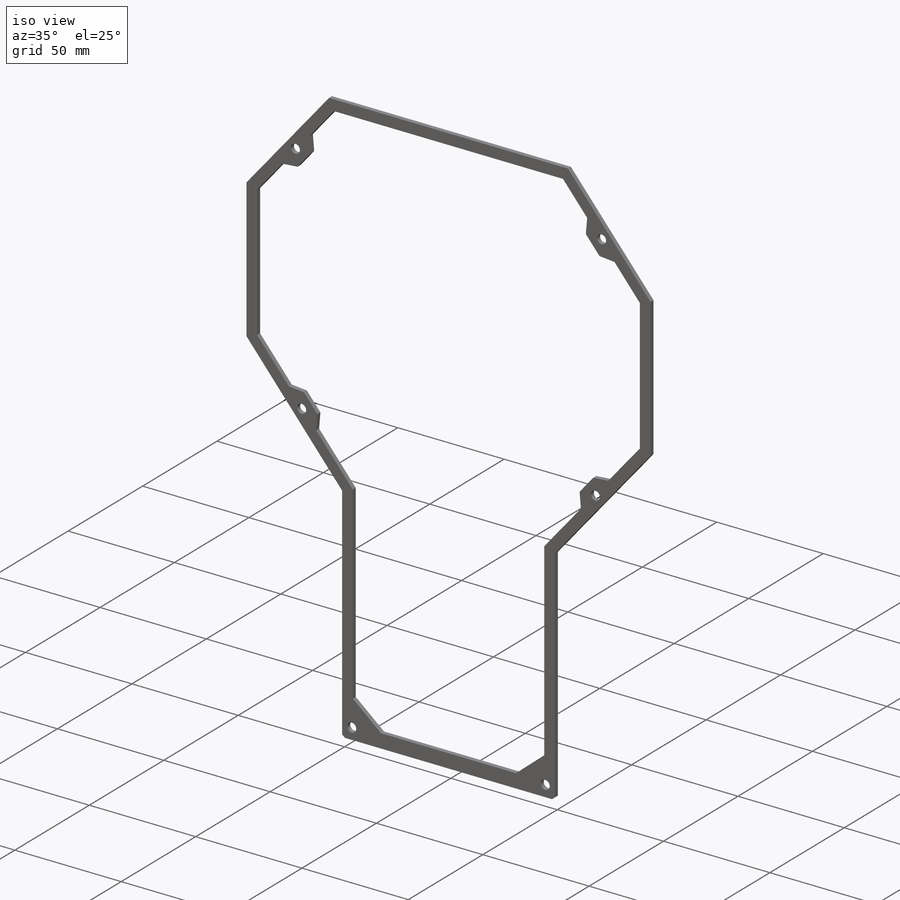
[diagram: iso view]
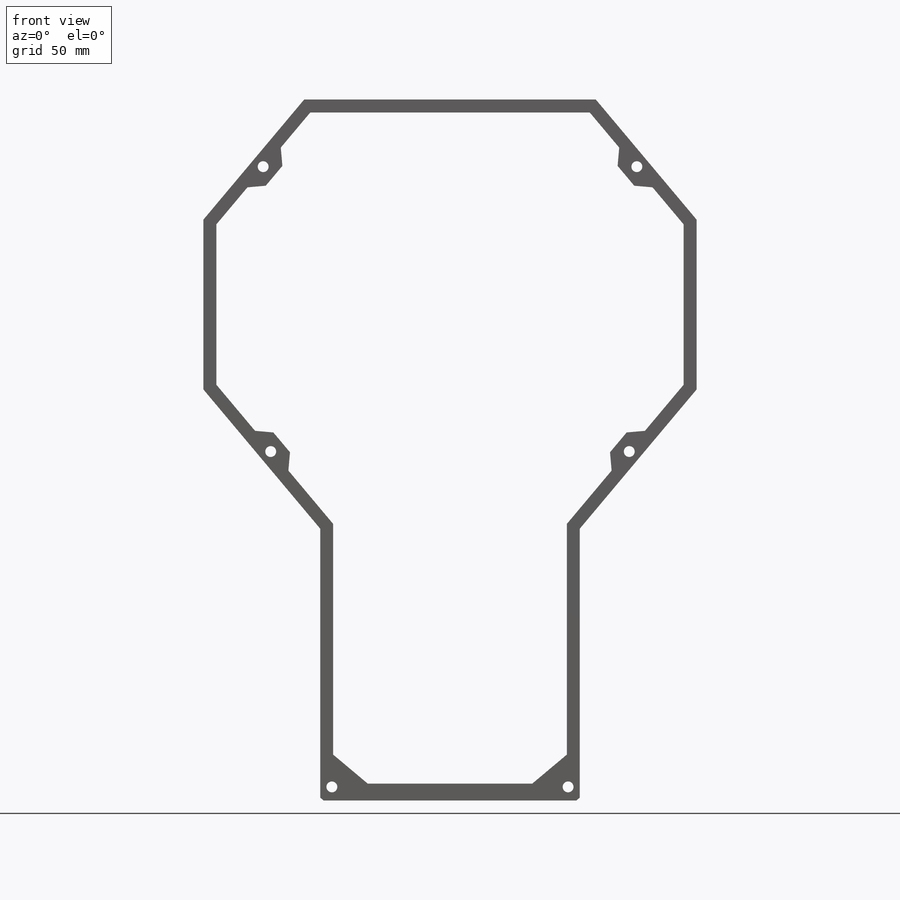
[diagram: front view]
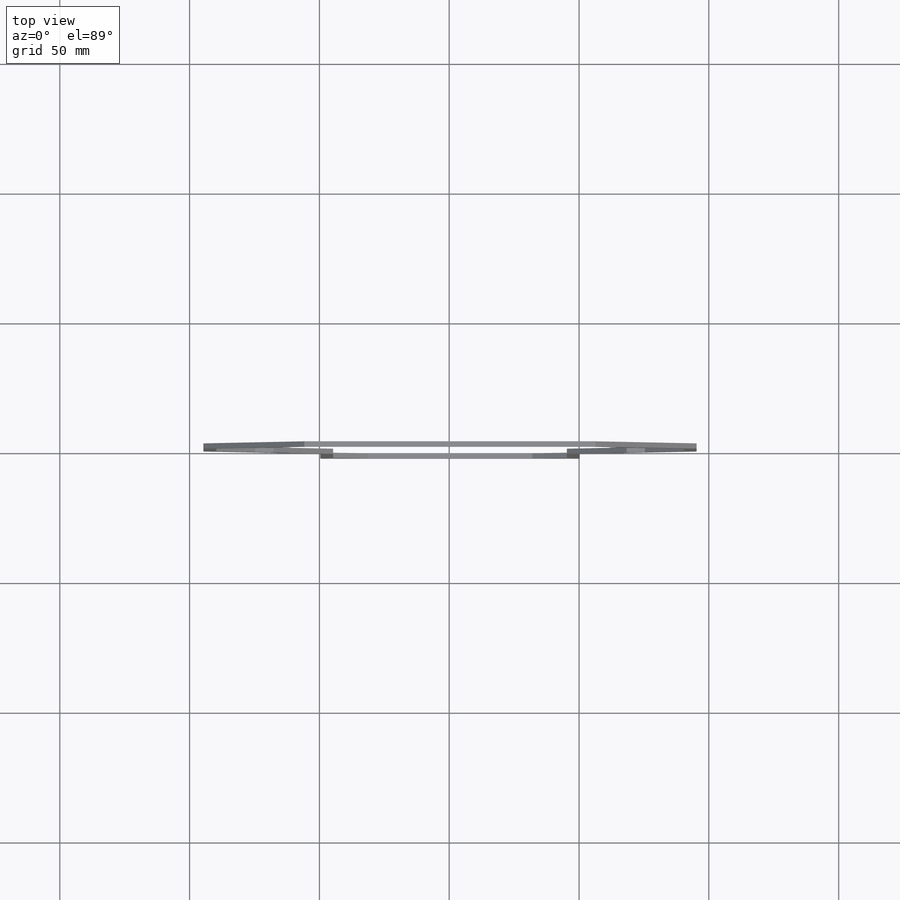
[diagram: top view]
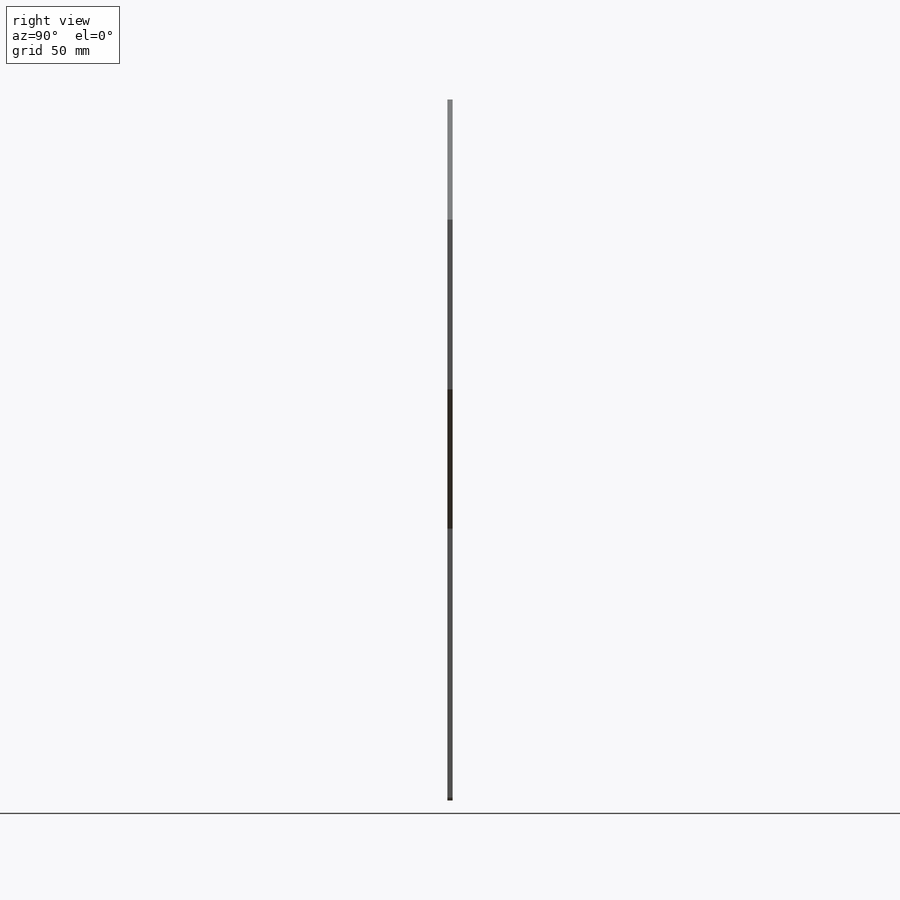
[diagram: right view]
SOLIDWORKS PART (.sldprt)
format: sldprt  version: not decoded by parser v0  size: 313,344 bytes
history: native  units: mm
features: plane x3, sketch x3, cut_extrude x2, material x1, extrude x1 (+9 scaffold rows collapsed)
feature tree (19):
  scaffold x9  (default folders/planes/origin — collapsed)
  material  "Material <não especificado>"
  plane  "Plano frontal"
  plane  "Plano superior"
  plane  "Plano direito"
  sketch  "Esboço1"  dims[D1=~17.191271mm]
  extrude  "Ressalto-extrusão1"  Depth=2mm
  sketch  "Esboço2"  dims[c1.D1=4.0mm c1.D2=4.0mm c1.D3=4.0mm c1.D5=4.0mm c1.D6=4.0mm c1.D7=4.0mm c1.D8=4.0mm c2.D1=4.0mm c2.D2=4.0mm c2.D3=4.0mm c2.D4=4.0mm c2.D5=2.0mm c3.D1=4.2mm c3.D3=4.2mm c4.D1=4.2mm c4.D2=~2.466577mm c4.D3=~1.233289mm c4.D4=4.2mm c4.D5=4.2mm c5.D2=4.2mm c5.D3=4.2mm c5.D4=4.2mm c5.D5=4.2mm c5.D1=4.2mm c5.D7=4.2mm c5.D8=4.2mm c6.D4=4.2mm c6.D5=4.2mm c6.D1=5.0mm c6.D2=5.0mm c6.D3=16.0mm c7.D4=29.0mm c7.D5=5.0mm c7.D6=5.0mm c7.D7=15.0mm c7.D8=30.0mm c7.D9=16.0mm c7.D1=5.0mm c7.D2=15.0mm c7.D3=5.0mm c8.D4=~26.355396mm c8.D2=~11.639228mm c8.D1=5.0mm c9.D2=~26.355396mm c9.D3=5.0mm c9.D4=~153.010572mm c9.D1=4.5mm c10.D2=5.0mm c10.D3=~26.364405mm c10.D4=5.0mm c11.D2=4.5mm c11.D3=4.5mm c11.D4=~2.552702mm c12.D4=50.0deg c13.D4=5.0mm c13.D5=5.0mm c13.D6=10.0mm c13.D1=~25.861012mm c13.D7=~23.027629mm c13.D8=5.23mm c14.D4=4.5mm c14.D5=28.0mm c14.D6=~0.246692mm]
  cut_extrude  "Corte-extrusão1"  [1 undecoded]
  sketch  "Esboço3"  dims[c1.D6=4.2mm c1.D12=4.2mm c1.D13=4.2mm c2.D6=4.2mm c2.D4=4.2mm c2.D9=~17.44582mm c2.D13=4.2mm c2.D14=4.2mm c2.D17=4.2mm c2.D20=4.2mm c2.D21=4.2mm c3.D9=4.2mm c3.D12=4.2mm c3.D1=10.0mm c3.D2=10.0mm c3.D3=10.0mm c3.D4=10.0mm c3.D5=10.0mm c3.D6=10.0mm c3.D7=10.0mm c3.D8=10.0mm c4.D9=10.0mm c4.D10=10.0mm c4.D1=5.0mm c4.D2=10.0mm c4.D3=5.0mm c4.D4=~10.243243mm c5.D4=50.0deg c5.D5=~7.778619mm c6.D5=40.0deg c7.D5=10.0mm c7.D6=10.0mm c7.D7=5.0mm c7.D8=5.0mm c7.D9=5.0mm c7.D10=10.0mm c7.D11=~6.527036mm c8.D11=50.0deg c8.D12=10.0mm c8.D13=10.0mm c8.D14=~4.274005mm c8.D15=~9.845734mm c8.D10=5.0mm c9.D11=~33.318035mm c10.D11=40.0deg c10.D3=5.0mm c10.D12=98.0531mm c10.D1=5.0mm c10.D2=~15.254265mm c11.D2=~0.313431deg c12.D2=5.0mm c12.D3=10.0mm c12.D6=10.0mm c12.D7=~8.378191mm c13.D7=40.0deg c14.D7=5.0mm c14.D4=~7.778619mm c15.D4=220.0deg c16.D4=~6.428962mm c16.D8=~7.661086mm c17.D4=~6.902972mm c18.D4=45.0deg c18.D8=5.0mm c18.D9=5.0mm c18.D10=5.0mm c18.D11=5.0mm c18.D12=~70.007572mm c18.D1=5.0mm c18.D2=5.0mm c18.D3=5.0mm c18.D5=5.0mm c18.D6=5.0mm c18.D7=10.0mm c19.D8=5.0mm c19.D9=5.0mm c19.D10=~308.925841mm c19.D1=5.0mm c19.D6=5.0mm c20.D10=~61.746811mm c20.D9=~6.912503mm c21.D9=45.0deg c21.D10=~5.602387mm c22.D10=45.0deg c22.D11=5.0mm c22.D12=10.0mm c22.D13=10.0mm c22.D14=10.0mm c22.D15=~7.071068mm c23.D15=45.0deg c23.D16=10.0mm c23.D17=10.0mm c23.D6=~31.707366mm c23.D2=~9.536702mm c24.D2=45.0deg c24.D6=~14.100075mm c25.D6=45.0deg c25.D18=5.0mm c25.D19=10.0mm c25.D20=10.0mm c25.D21=10.0mm c25.D2=5.0mm c26.D6=10.0mm c26.D9=10.0mm c26.D10=~7.526123mm c27.D10=55.0deg c28.D10=~5.500651mm c29.D10=45.0deg c29.D11=~7.009889mm c30.D11=40.0deg c31.D11=~7.009889mm c32.D11=45.0deg c32.D6=20.0mm c32.D9=10.0mm c32.D12=~10.024984mm c33.D6=10.0mm c33.D12=10.0mm]
  cut_extrude  "Corte-extrusão2"  Depth=10mm
decode coverage: 5 of 6 modeling features carry decoded parameters
note: ~ marks probable driven/reference dimensions
note: 1 parameter value undecoded
note: suppression state not decoded; provenance and decode notes live in map.json
